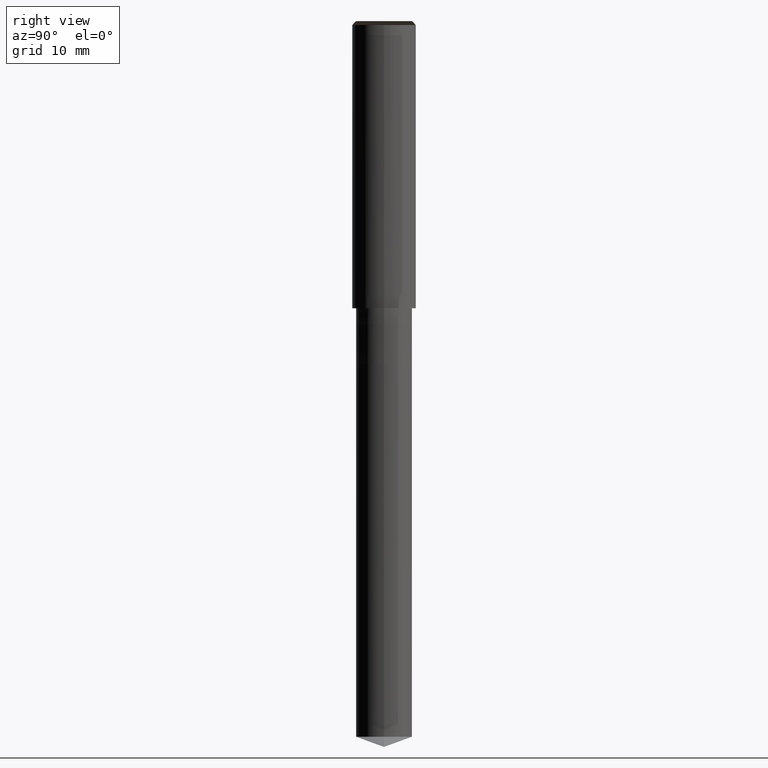
[diagram: clean part render]
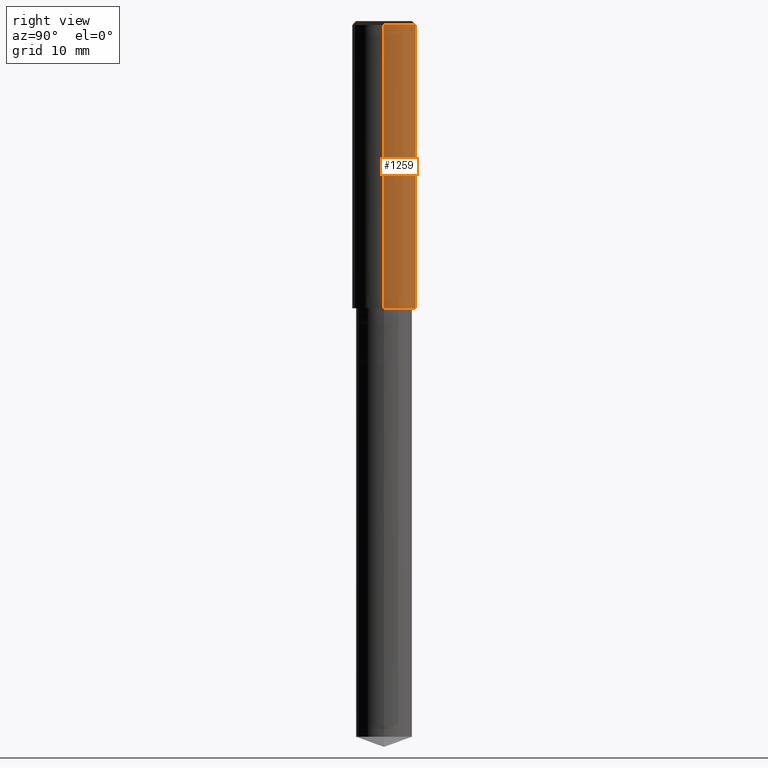
[diagram: same view with one face highlighted and labeled with its STEP entity id]
A machine part, right view. The second image highlights one B-rep face of the part: STEP entity #1259.
In plain terms, the highlighted face is a freeform B-spline surface patch.
Its self-contained STEP definition (entity closure, byte-faithful):
#1020=CARTESIAN_POINT('',(4.0,0.0,0.0));
#1021=CARTESIAN_POINT('',(4.0,4.0,0.0));
#1022=CARTESIAN_POINT('',(0.0,4.0,0.0));
#1023=CARTESIAN_POINT('',(-4.0,4.0,0.0));
#1024=CARTESIAN_POINT('',(-4.0,0.0,0.0));
#1025=CARTESIAN_POINT('',(4.0,0.0,35.5));
#1026=CARTESIAN_POINT('',(4.0,4.0,35.5));
#1027=CARTESIAN_POINT('',(0.0,4.0,35.5));
#1028=CARTESIAN_POINT('',(-4.0,4.0,35.5));
#1029=CARTESIAN_POINT('',(-4.0,0.0,35.5));
#1240=(
BOUNDED_SURFACE()
B_SPLINE_SURFACE(1,2,(
(#1020,#1021,#1022,#1023,#1024),
(#1025,#1026,#1027,#1028,#1029)
), .UNSPECIFIED.,.F.,.F.,.F.)
B_SPLINE_SURFACE_WITH_KNOTS((2,2),(3,2,3),(
0.0,1.0),(
0.0,0.5,1.0), .UNSPECIFIED.)
GEOMETRIC_REPRESENTATION_ITEM()
RATIONAL_B_SPLINE_SURFACE(((1.0,0.707106781187,1.0,0.707106781187,1.0),
(1.0,0.707106781187,1.0,0.707106781187,1.0)
))
REPRESENTATION_ITEM('')
SURFACE()
);
#1241=(
BOUNDED_CURVE()
B_SPLINE_CURVE(2,(#1024,#1023,#1022,#1021,#1020),.UNSPECIFIED.,.F.,.F.)
B_SPLINE_CURVE_WITH_KNOTS((3,2,3),
(0.0,0.5,1.0),.UNSPECIFIED.)
CURVE()
GEOMETRIC_REPRESENTATION_ITEM()
RATIONAL_B_SPLINE_CURVE((1.0,0.707106781187,1.0,0.707106781187,1.0))
REPRESENTATION_ITEM('')
);
#1242=(
BOUNDED_CURVE()
B_SPLINE_CURVE(1,(#1020,#1025),.UNSPECIFIED.,.F.,.F.)
B_SPLINE_CURVE_WITH_KNOTS((2,2),
(0.0,1.0),.UNSPECIFIED.)
CURVE()
GEOMETRIC_REPRESENTATION_ITEM()
RATIONAL_B_SPLINE_CURVE((1.0,1.0))
REPRESENTATION_ITEM('')
);
#1243=(
BOUNDED_CURVE()
B_SPLINE_CURVE(2,(#1025,#1026,#1027,#1028,#1029),.UNSPECIFIED.,.F.,.F.)
B_SPLINE_CURVE_WITH_KNOTS((3,2,3),
(0.0,0.5,1.0),.UNSPECIFIED.)
CURVE()
GEOMETRIC_REPRESENTATION_ITEM()
RATIONAL_B_SPLINE_CURVE((1.0,0.707106781187,1.0,0.707106781187,1.0))
REPRESENTATION_ITEM('')
);
#1244=(
BOUNDED_CURVE()
B_SPLINE_CURVE(1,(#1029,#1024),.UNSPECIFIED.,.F.,.F.)
B_SPLINE_CURVE_WITH_KNOTS((2,2),
(0.0,1.0),.UNSPECIFIED.)
CURVE()
GEOMETRIC_REPRESENTATION_ITEM()
RATIONAL_B_SPLINE_CURVE((1.0,1.0))
REPRESENTATION_ITEM('')
);
#1245=VERTEX_POINT('',#1020);
#1246=VERTEX_POINT('',#1024);
#1247=VERTEX_POINT('',#1025);
#1248=VERTEX_POINT('',#1029);
#1249=EDGE_CURVE('',#1246,#1245,#1241,.T.);
#1250=EDGE_CURVE('',#1245,#1247,#1242,.T.);
#1251=EDGE_CURVE('',#1247,#1248,#1243,.T.);
#1252=EDGE_CURVE('',#1248,#1246,#1244,.T.);
#1253=ORIENTED_EDGE('',*,*,#1249,.T.);
#1254=ORIENTED_EDGE('',*,*,#1250,.T.);
#1255=ORIENTED_EDGE('',*,*,#1251,.T.);
#1256=ORIENTED_EDGE('',*,*,#1252,.T.);
#1257=EDGE_LOOP('',(#1253,#1254,#1255,#1256));
#1258=FACE_OUTER_BOUND('',#1257,.T.);
#1259=ADVANCED_FACE('',(#1258),#1240,.T.);